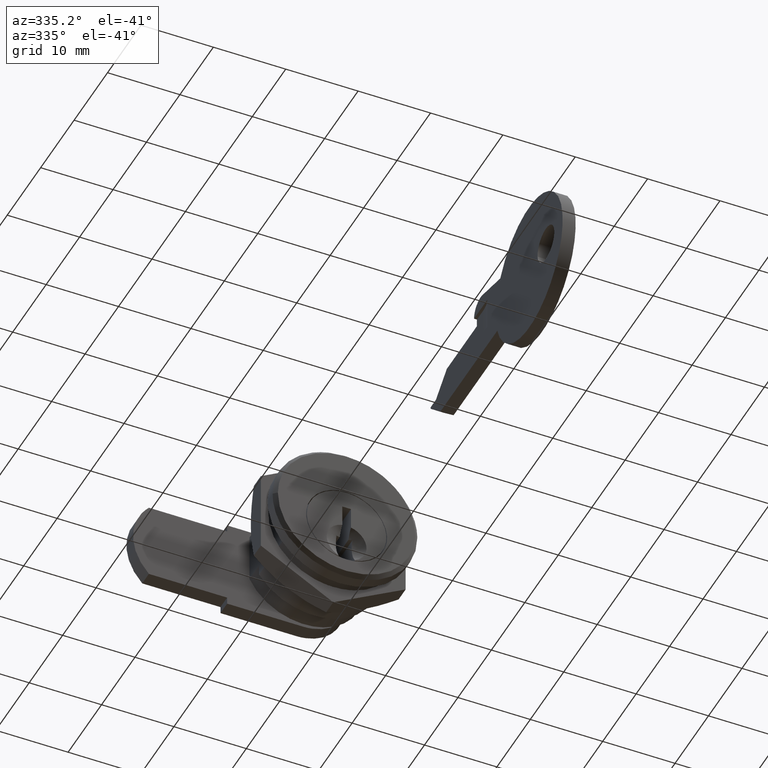
[diagram: clean part render]
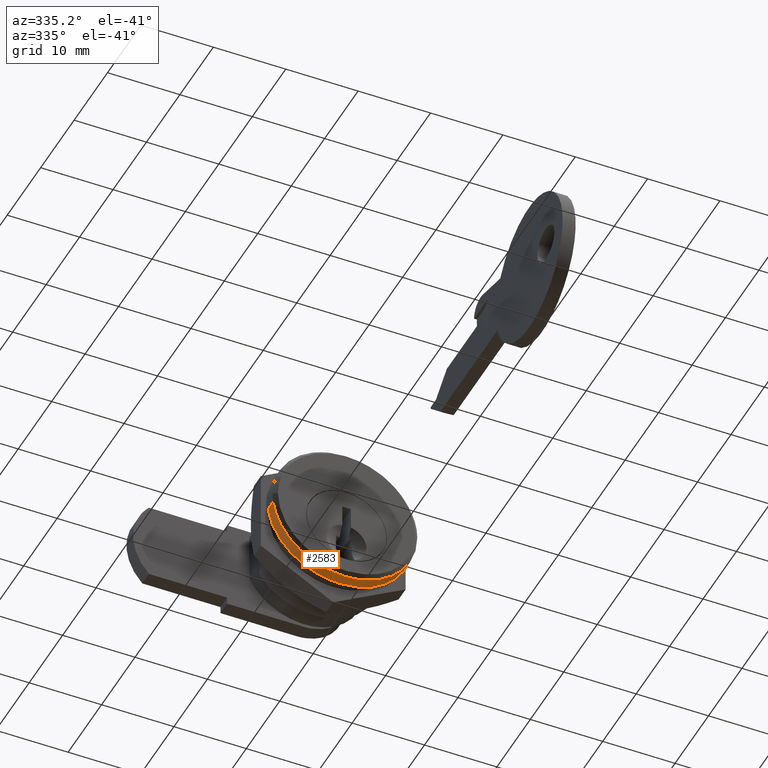
[diagram: same view with one face highlighted and labeled with its STEP entity id]
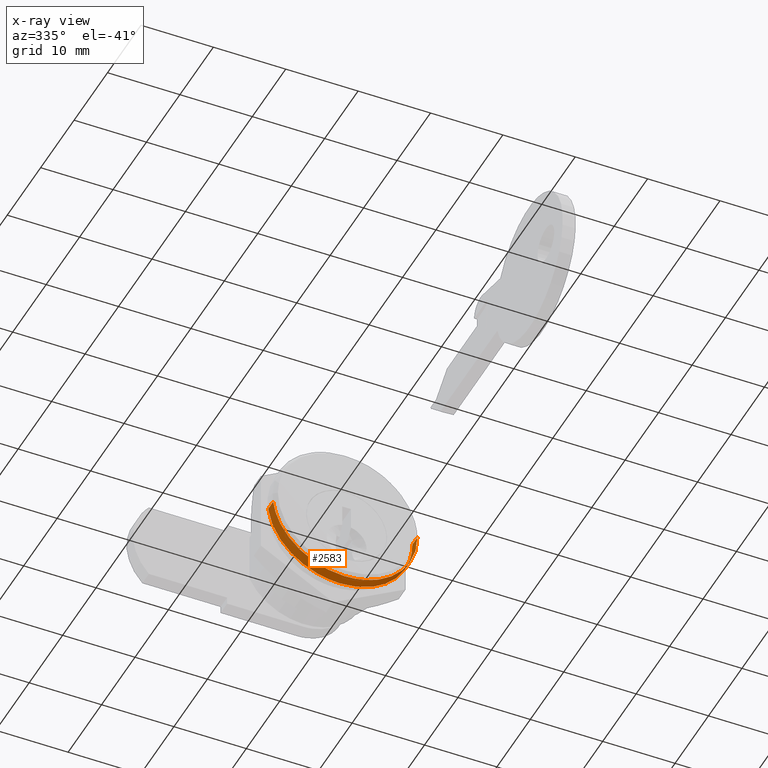
[diagram: x-ray of the same camera — body ghosted, the highlighted face saturated]
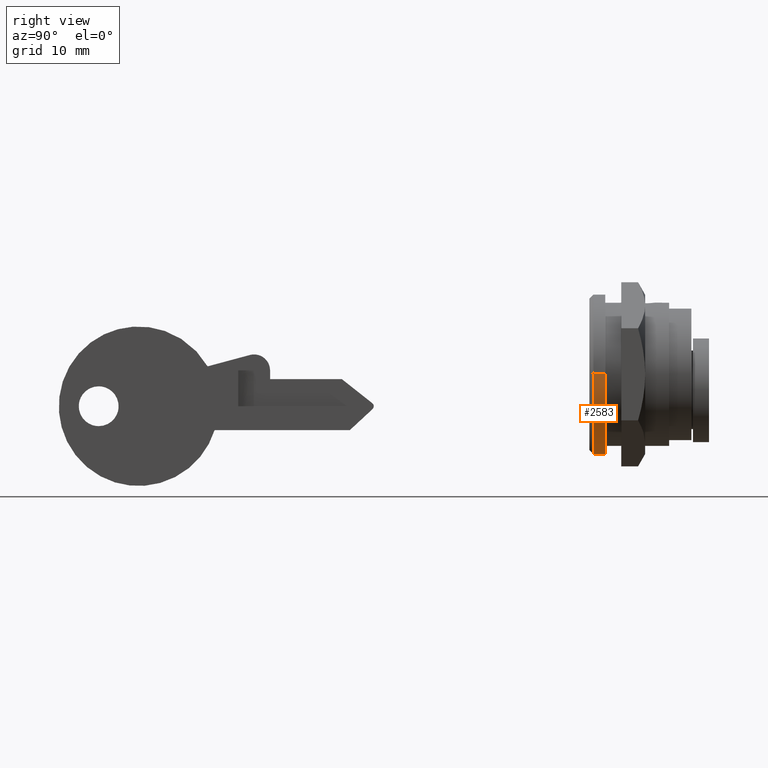
[diagram: same view with one face highlighted and labeled with its STEP entity id]
A machine part, auxiliary view. The second image highlights one B-rep face of the part: STEP entity #2583.
The next image is the same camera in x-ray: the body ghosted, the highlighted face saturated — about 0% of this face is hidden behind the body in this view.
A second angle (right view) of the same face is appended — the face is thin or edge-on in the first view.
In plain terms, the highlighted face is a freeform B-spline surface patch.
Its self-contained STEP definition (entity closure, byte-faithful):
#2407=CARTESIAN_POINT('',(0.499999999999945,9.922662971868391,-1.241273356947136));
#2408=VERTEX_POINT('',#2407);
#2424=CARTESIAN_POINT('',(0.499999999999945,0.0,-10.0));
#2425=VERTEX_POINT('',#2424);
#2426=CARTESIAN_POINT('',(0.499999999999945,0.0,-10.0));
#2427=CARTESIAN_POINT('',(0.499999999999945,8.826991975725022,-9.999999999999998));
#2428=CARTESIAN_POINT('',(0.499999999999945,9.922662971868391,-1.241273356947135));
#2436=(BOUNDED_CURVE()B_SPLINE_CURVE(2,(#2426,#2427,#2428),.UNSPECIFIED.,.F.,.U.)B_SPLINE_CURVE_WITH_KNOTS((3,3),(0.500000000000000,0.728526184288359),.UNSPECIFIED.)CURVE()GEOMETRIC_REPRESENTATION_ITEM()RATIONAL_B_SPLINE_CURVE((1.0,0.732264921202505,0.954005650066888))REPRESENTATION_ITEM(''));
#2437=EDGE_CURVE('',#2425,#2408,#2436,.T.);
#2439=CARTESIAN_POINT('',(0.499999999999945,-9.999619346123598,0.087252120062753));
#2440=VERTEX_POINT('',#2439);
#2441=CARTESIAN_POINT('',(0.499999999999945,-9.999619346123598,0.087252120062753));
#2442=CARTESIAN_POINT('',(0.499999999999945,-10.0,0.043626890368643));
#2443=CARTESIAN_POINT('',(0.499999999999945,-10.0,0.0));
#2444=CARTESIAN_POINT('',(0.499999999999945,-10.000000000000002,-10.000000000000002));
#2445=CARTESIAN_POINT('',(0.499999999999945,0.0,-10.0));
#2453=(BOUNDED_CURVE()B_SPLINE_CURVE(2,(#2441,#2442,#2443,#2444,#2445),.UNSPECIFIED.,.F.,.U.)B_SPLINE_CURVE_WITH_KNOTS((3,2,3),(0.248460338797527,0.250000000000000,0.500000000000000),.UNSPECIFIED.)CURVE()GEOMETRIC_REPRESENTATION_ITEM()RATIONAL_B_SPLINE_CURVE((0.996414567634870,0.998196174698101,1.0,0.707106781186548,1.0))REPRESENTATION_ITEM(''));
#2454=EDGE_CURVE('',#2440,#2425,#2453,.T.);
#2517=CARTESIAN_POINT('',(2.037500000000002,9.922662138255385,-1.241280020798293));
#2518=CARTESIAN_POINT('',(2.037500000000002,8.817312581332210,-10.077328305024446));
#2519=CARTESIAN_POINT('',(2.037500000000001,-0.087265354983739,-9.999619230641709));
#2520=CARTESIAN_POINT('',(2.037500000000002,-10.086884585625448,-9.912353875657971));
#2521=CARTESIAN_POINT('',(2.037500000000001,-9.999619230641709,0.087265354983739));
#2522=CARTESIAN_POINT('',(0.461562499999943,9.922662138255385,-1.241280020798293));
#2523=CARTESIAN_POINT('',(0.461562499999943,8.817312581332210,-10.077328305024446));
#2524=CARTESIAN_POINT('',(0.461562499999943,-0.087265354983739,-9.999619230641709));
#2525=CARTESIAN_POINT('',(0.461562499999943,-10.086884585625448,-9.912353875657971));
#2526=CARTESIAN_POINT('',(0.461562499999943,-9.999619230641709,0.087265354983739));
#2534=(BOUNDED_SURFACE()B_SPLINE_SURFACE(2,1,((#2517,#2522),(#2518,#2523),(#2519,#2524),(#2520,#2525),(#2521,#2526)),.UNSPECIFIED.,.F.,.F.,.U.)B_SPLINE_SURFACE_WITH_KNOTS((3,2,3),(2,2),(0.0,15.243059095329890,31.811601590253691),(0.0,1.0),.UNSPECIFIED.)GEOMETRIC_REPRESENTATION_ITEM()RATIONAL_B_SPLINE_SURFACE(((0.956886118190660,0.956886118190660),(0.730538238691624,0.730538238691624),(1.0,1.0),(0.707106781186548,0.707106781186548),(1.0,1.0)))REPRESENTATION_ITEM('')SURFACE());
#2535=CARTESIAN_POINT('',(2.0,9.922662138249098,-1.241280020848566));
#2536=VERTEX_POINT('',#2535);
#2537=CARTESIAN_POINT('',(2.0,0.0,-10.0));
#2538=VERTEX_POINT('',#2537);
#2539=CARTESIAN_POINT('',(2.000000000000000,9.922662138249098,-1.241280020848566));
#2540=CARTESIAN_POINT('',(2.000000000000000,8.826986001412148,-10.0));
#2541=CARTESIAN_POINT('',(2.0,0.0,-10.0));
#2549=(BOUNDED_CURVE()B_SPLINE_CURVE(2,(#2539,#2540,#2541),.UNSPECIFIED.,.F.,.U.)B_SPLINE_CURVE_WITH_KNOTS((3,3),(0.771473928972410,1.0),.UNSPECIFIED.)CURVE()GEOMETRIC_REPRESENTATION_ITEM()RATIONAL_B_SPLINE_CURVE((0.954005430271402,0.732265053895750,1.0))REPRESENTATION_ITEM(''));
#2550=EDGE_CURVE('',#2536,#2538,#2549,.T.);
#2551=ORIENTED_EDGE('',*,*,#2550,.T.);
#2552=CARTESIAN_POINT('',(2.000000000001118,-9.999619364187822,0.087250049430561));
#2553=VERTEX_POINT('',#2552);
#2554=CARTESIAN_POINT('',(2.0,0.0,-10.0));
#2555=CARTESIAN_POINT('',(2.000000000000000,-10.000000000000002,-10.000000000000002));
#2556=CARTESIAN_POINT('',(2.0,-10.0,0.0));
#2557=CARTESIAN_POINT('',(2.000000000000000,-9.999999999999998,0.043625854993444));
#2558=CARTESIAN_POINT('',(2.000000000001118,-9.999619364187822,0.087250049430561));
#2566=(BOUNDED_CURVE()B_SPLINE_CURVE(2,(#2554,#2555,#2556,#2557,#2558),.UNSPECIFIED.,.F.,.U.)B_SPLINE_CURVE_WITH_KNOTS((3,2,3),(0.0,0.250000000000000,0.251539624728373),.UNSPECIFIED.)CURVE()GEOMETRIC_REPRESENTATION_ITEM()RATIONAL_B_SPLINE_CURVE((1.0,0.707106781186548,1.0,0.998196217430168,0.996414652046328))REPRESENTATION_ITEM(''));
#2567=EDGE_CURVE('',#2538,#2553,#2566,.T.);
#2568=ORIENTED_EDGE('',*,*,#2567,.T.);
#2569=CARTESIAN_POINT('',(2.000000000001118,-9.999619364187822,0.087250049430561));
#2570=CARTESIAN_POINT('',(0.499999999999945,-9.999619346123598,0.087252120062753));
#2571=QUASI_UNIFORM_CURVE('',1,(#2569,#2570),.UNSPECIFIED.,.F.,.U.);
#2572=EDGE_CURVE('',#2553,#2440,#2571,.T.);
#2573=ORIENTED_EDGE('',*,*,#2572,.T.);
#2574=ORIENTED_EDGE('',*,*,#2454,.T.);
#2575=ORIENTED_EDGE('',*,*,#2437,.T.);
#2576=CARTESIAN_POINT('',(2.0,9.922662138249098,-1.241280020848566));
#2577=CARTESIAN_POINT('',(0.499999999999945,9.922662971868391,-1.241273356947136));
#2578=QUASI_UNIFORM_CURVE('',1,(#2576,#2577),.UNSPECIFIED.,.F.,.U.);
#2579=EDGE_CURVE('',#2536,#2408,#2578,.T.);
#2580=ORIENTED_EDGE('',*,*,#2579,.F.);
#2581=EDGE_LOOP('',(#2551,#2568,#2573,#2574,#2575,#2580));
#2582=FACE_OUTER_BOUND('',#2581,.T.);
#2583=ADVANCED_FACE('',(#2582),#2534,.T.);